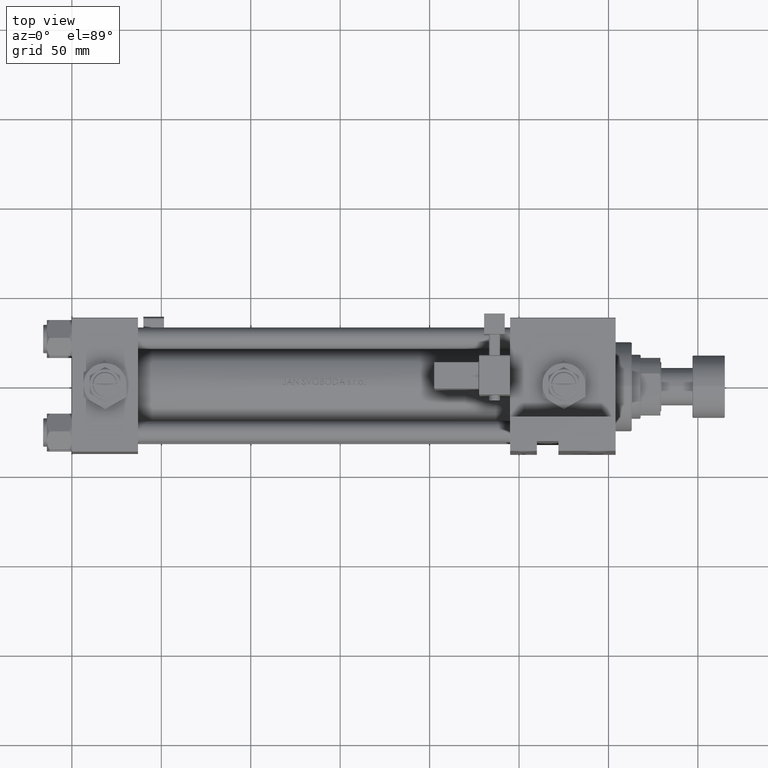
[diagram: clean part render]
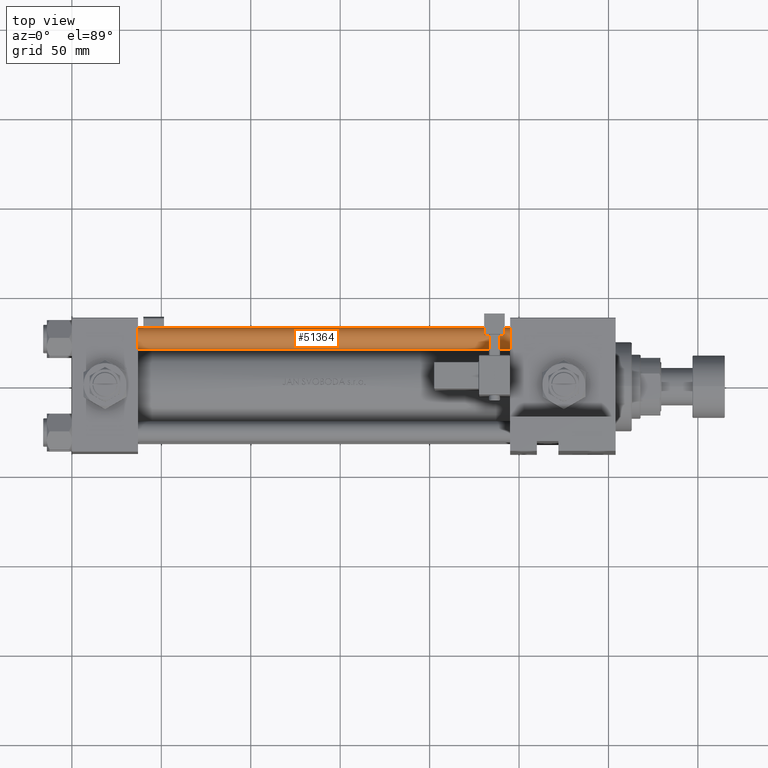
[diagram: same view with one face highlighted and labeled with its STEP entity id]
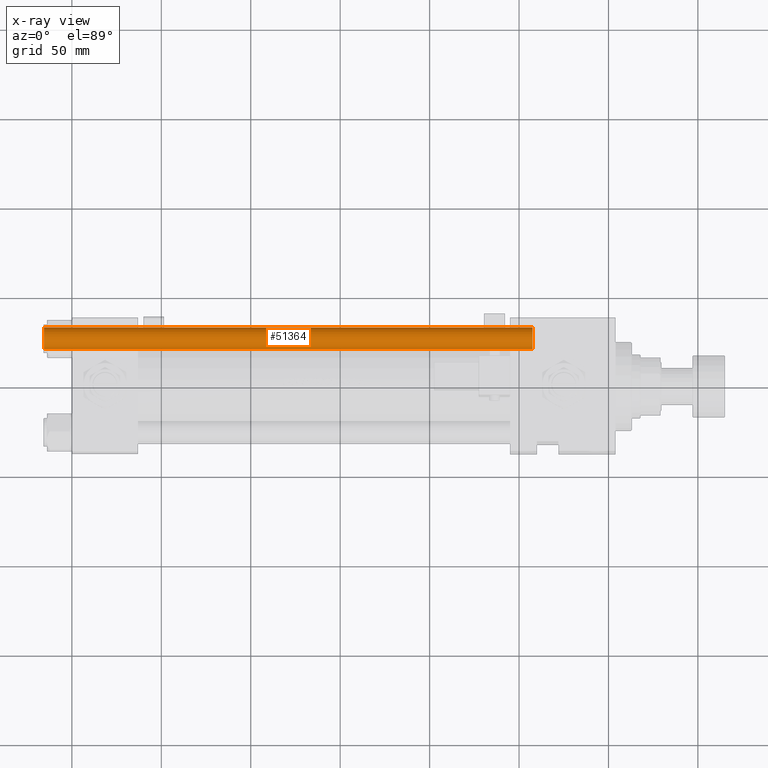
[diagram: x-ray of the same camera — body ghosted, the highlighted face saturated]
A machine part, top view. The second image highlights one B-rep face of the part: STEP entity #51364.
The next image is the same camera in x-ray: the body ghosted, the highlighted face saturated — about 0% of this face is hidden behind the body in this view.
In plain terms, the highlighted cylindrical surface (edge-blend (fillet) strip) has radius 6 mm, axis along (1, -0, 0).
Its self-contained STEP definition (entity closure, byte-faithful):
#1067 = DIRECTION ( 'NONE',  ( -1.000000000000000000, 0.000000000000000000, 0.000000000000000000 ) ) ;
#2573 = EDGE_CURVE ( 'NONE', #16979, #20000, #10226, .T. ) ;
#6241 = DIRECTION ( 'NONE',  ( -0.000000000000000000, -0.000000000000000000, -1.000000000000000000 ) ) ;
#10226 = LINE ( 'NONE', #14186, #49860 ) ;
#10588 = VERTEX_POINT ( 'NONE', #18592 ) ;
#10768 = AXIS2_PLACEMENT_3D ( 'NONE', #24659, #37354, #1067 ) ;
#12086 = DIRECTION ( 'NONE',  ( 1.000000000000000000, 0.000000000000000000, 0.000000000000000000 ) ) ;
#13473 = CARTESIAN_POINT ( 'NONE',  ( -6.000000000000000888, 0.000000000000000000, 0.5000000000000559552 ) ) ;
#14186 = CARTESIAN_POINT ( 'NONE',  ( -6.000000000000000888, 0.000000000000000000, 274.0000000000000000 ) ) ;
#16057 = CARTESIAN_POINT ( 'NONE',  ( 0.000000000000000000, 0.000000000000000000, 0.5000000000000559552 ) ) ;
#16979 = VERTEX_POINT ( 'NONE', #42080 ) ;
#17184 = EDGE_CURVE ( 'NONE', #35432, #10588, #24030, .T. ) ;
#17864 = ORIENTED_EDGE ( 'NONE', *, *, #2573, .T. ) ;
#18592 = CARTESIAN_POINT ( 'NONE',  ( 6.000000000000000888, 7.347880794884120722E-16, 0.5000000000000559552 ) ) ;
#19045 = EDGE_CURVE ( 'NONE', #35432, #16979, #19185, .T. ) ;
#19185 = CIRCLE ( 'NONE', #25975, 6.000000000000000888 ) ;
#19800 = CARTESIAN_POINT ( 'NONE',  ( 0.000000000000000000, 0.000000000000000000, 273.5000000000000000 ) ) ;
#20000 = VERTEX_POINT ( 'NONE', #13473 ) ;
#21201 = CYLINDRICAL_SURFACE ( 'NONE', #10768, 6.000000000000000888 ) ;
#24030 = LINE ( 'NONE', #28272, #47898 ) ;
#24659 = CARTESIAN_POINT ( 'NONE',  ( 0.000000000000000000, 0.000000000000000000, 274.0000000000000000 ) ) ;
#25182 = FACE_OUTER_BOUND ( 'NONE', #29958, .T. ) ;
#25199 = CARTESIAN_POINT ( 'NONE',  ( 6.000000000000000888, 7.347880794884120722E-16, 273.5000000000000000 ) ) ;
#25790 = DIRECTION ( 'NONE',  ( -0.000000000000000000, -0.000000000000000000, -1.000000000000000000 ) ) ;
#25975 = AXIS2_PLACEMENT_3D ( 'NONE', #19800, #51856, #31722 ) ;
#28272 = CARTESIAN_POINT ( 'NONE',  ( 6.000000000000000888, 7.347880794884120722E-16, 274.0000000000000000 ) ) ;
#29958 = EDGE_LOOP ( 'NONE', ( #38241, #44367, #17864, #43577 ) ) ;
#30107 = CIRCLE ( 'NONE', #33495, 6.000000000000000888 ) ;
#31722 = DIRECTION ( 'NONE',  ( 1.000000000000000000, 0.000000000000000000, 0.000000000000000000 ) ) ;
#33495 = AXIS2_PLACEMENT_3D ( 'NONE', #16057, #48381, #12086 ) ;
#35432 = VERTEX_POINT ( 'NONE', #25199 ) ;
#37354 = DIRECTION ( 'NONE',  ( -0.000000000000000000, -0.000000000000000000, -1.000000000000000000 ) ) ;
#38241 = ORIENTED_EDGE ( 'NONE', *, *, #17184, .F. ) ;
#42080 = CARTESIAN_POINT ( 'NONE',  ( -6.000000000000000888, 0.000000000000000000, 273.5000000000000000 ) ) ;
#42103 = EDGE_CURVE ( 'NONE', #20000, #10588, #30107, .T. ) ;
#43577 = ORIENTED_EDGE ( 'NONE', *, *, #42103, .T. ) ;
#44367 = ORIENTED_EDGE ( 'NONE', *, *, #19045, .T. ) ;
#47898 = VECTOR ( 'NONE', #25790, 1000.000000000000000 ) ;
#48381 = DIRECTION ( 'NONE',  ( -0.000000000000000000, -0.000000000000000000, 1.000000000000000000 ) ) ;
#49860 = VECTOR ( 'NONE', #6241, 1000.000000000000000 ) ;
#51364 = ADVANCED_FACE ( 'NONE', ( #25182 ), #21201, .T. ) ;
#51856 = DIRECTION ( 'NONE',  ( 0.000000000000000000, 0.000000000000000000, -1.000000000000000000 ) ) ;